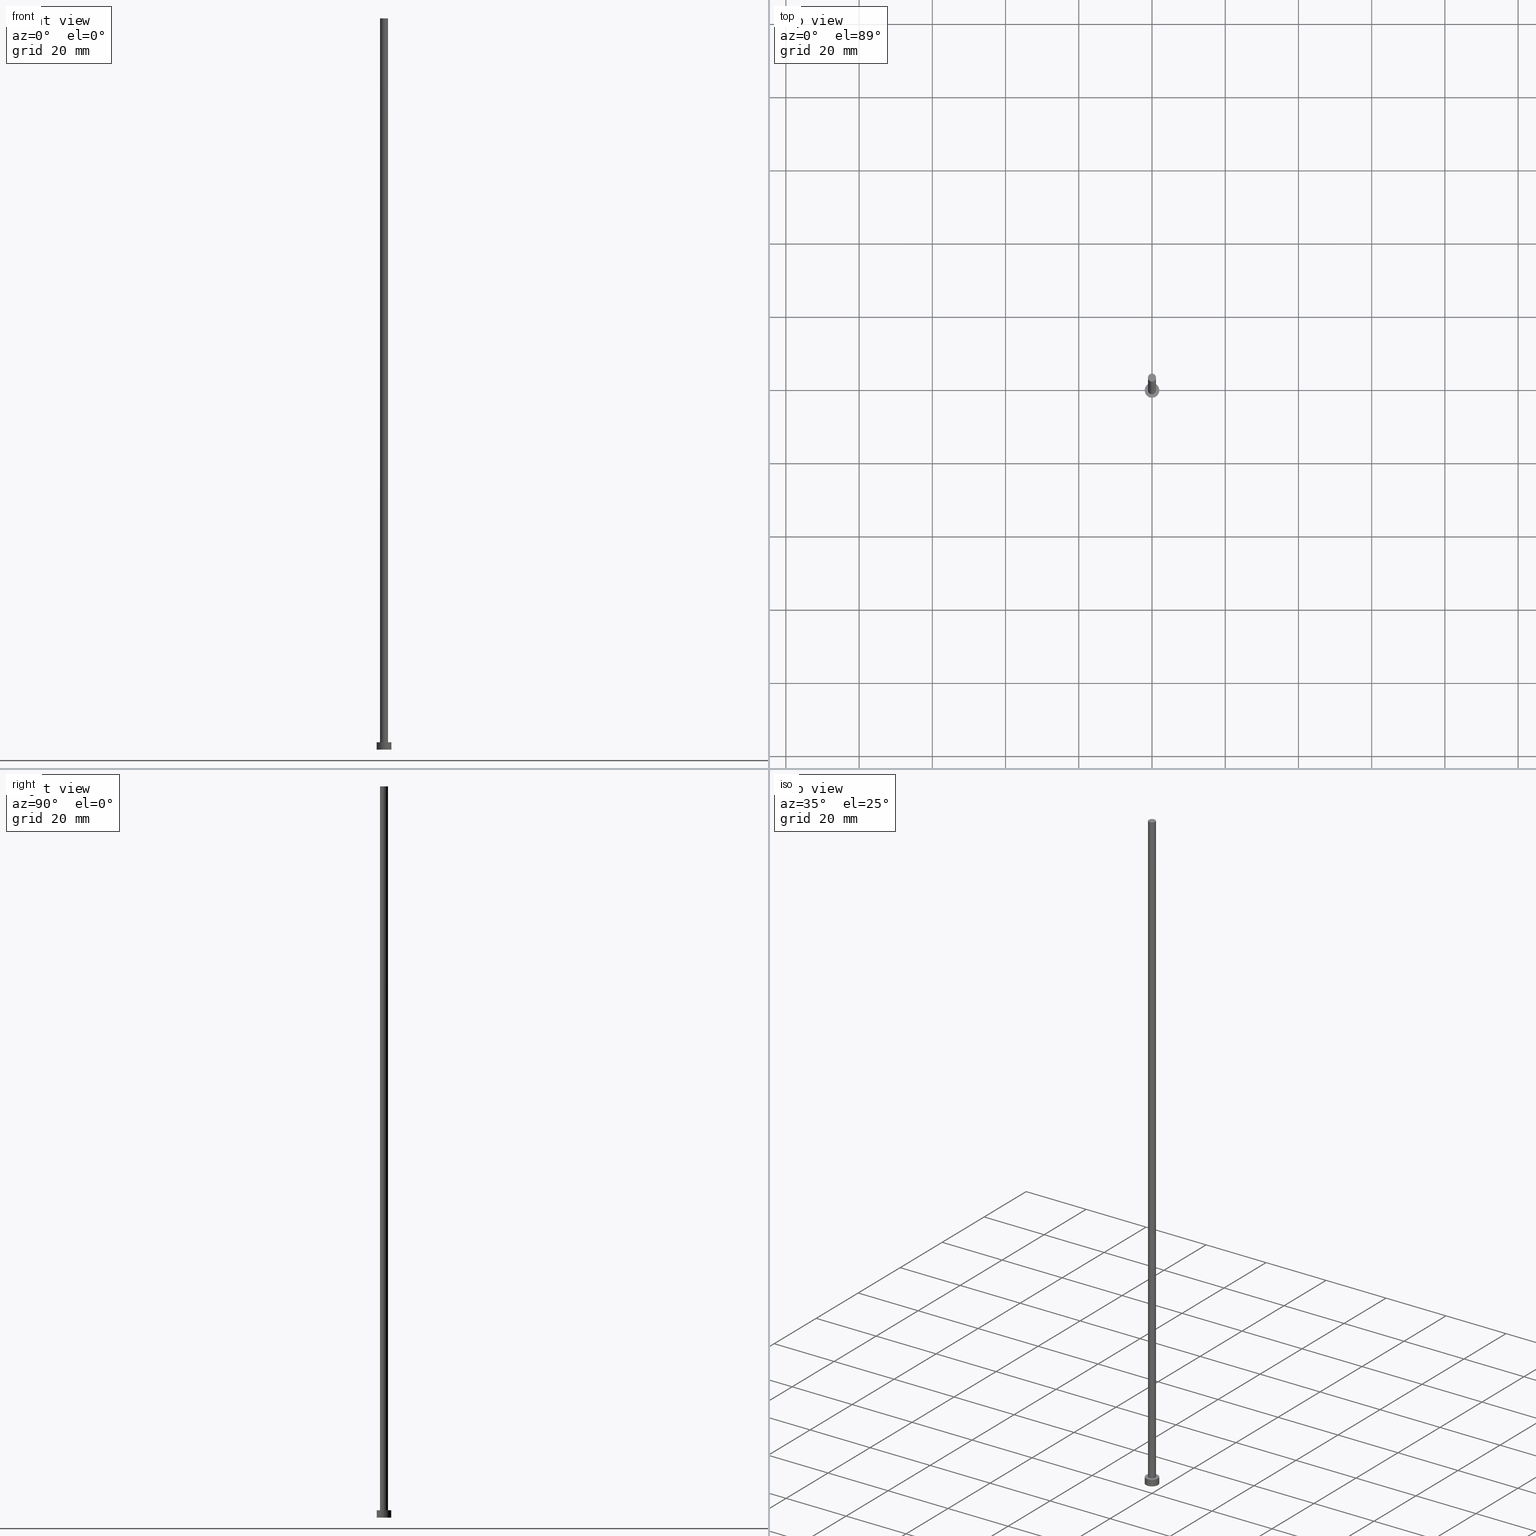
[diagram: canonical four-view strip — front | top / right | iso, engineering-drawing reading convention]
A machine part, canonical four-view strip (front | top / right | iso — engineering-drawing reading convention). The complete STEP part file that produces these views, byte-faithful:
ISO-10303-21;
HEADER;
FILE_DESCRIPTION (( 'STEP AP203' ),
    '1' );
FILE_NAME ('b274.STEP',
    '2023-04-04T13:15:45',
    ( '' ),
    ( '' ),
    'SwSTEP 2.0',
    'SolidWorks 2019',
    '' );
FILE_SCHEMA (( 'CONFIG_CONTROL_DESIGN' ));
ENDSEC;

DATA;
#1 = EDGE_LOOP ( 'NONE', ( #235, #194, #211, #18 ) ) ;
#2 = EDGE_CURVE ( 'NONE', #159, #37, #104, .T. ) ;
#3 = DIRECTION ( 'NONE',  ( 1.000000000000000000, 0.000000000000000000, 0.000000000000000000 ) ) ;
#4 = AXIS2_PLACEMENT_3D ( 'NONE', #46, #115, #187 ) ;
#5 = CC_DESIGN_APPROVAL ( #228, ( #97 ) ) ;
#6 = CARTESIAN_POINT ( 'NONE',  ( 0.000000000000000000, 0.000000000000000000, 0.000000000000000000 ) ) ;
#7 = PLANE ( 'NONE',  #21 ) ;
#8 = DIRECTION ( 'NONE',  ( -0.000000000000000000, -0.000000000000000000, -1.000000000000000000 ) ) ;
#9 = AXIS2_PLACEMENT_3D ( 'NONE', #132, #246, #184 ) ;
#10 = FACE_OUTER_BOUND ( 'NONE', #173, .T. ) ;
#11 = FACE_BOUND ( 'NONE', #181, .T. ) ;
#12 = EDGE_CURVE ( 'NONE', #42, #255, #193, .T. ) ;
#13 = APPROVAL_STATUS ( 'not_yet_approved' ) ;
#14 = PERSON ( 'NEUR�EN�', 'NEUR�EN�', 'NEUR�EN�', ('NEUR�EN�'), ('NEUR�EN�'), ('NEUR�EN�') ) ;
#15 = EDGE_CURVE ( 'NONE', #160, #250, #236, .T. ) ;
#16 = COORDINATED_UNIVERSAL_TIME_OFFSET ( 1, 0, .AHEAD. ) ;
#17 = CARTESIAN_POINT ( 'NONE',  ( 1.100000000000000089, 1.347111479062088503E-16, 2.000000000000000000 ) ) ;
#18 = ORIENTED_EDGE ( 'NONE', *, *, #35, .T. ) ;
#19 = CIRCLE ( 'NONE', #34, 1.100000000000000089 ) ;
#20 = APPROVAL_ROLE ( '' ) ;
#21 = AXIS2_PLACEMENT_3D ( 'NONE', #71, #149, #147 ) ;
#22 = AXIS2_PLACEMENT_3D ( 'NONE', #227, #43, #3 ) ;
#23 = ORIENTED_EDGE ( 'NONE', *, *, #15, .F. ) ;
#24 = ADVANCED_FACE ( 'NONE', ( #122 ), #195, .F. ) ;
#25 = DIRECTION ( 'NONE',  ( 0.000000000000000000, 0.000000000000000000, 1.000000000000000000 ) ) ;
#26 = EDGE_LOOP ( 'NONE', ( #23, #45, #234, #230 ) ) ;
#27 = FACE_OUTER_BOUND ( 'NONE', #128, .T. ) ;
#28 = CARTESIAN_POINT ( 'NONE',  ( 0.000000000000000000, 0.000000000000000000, 2.000000000000000000 ) ) ;
#29 = CYLINDRICAL_SURFACE ( 'NONE', #4, 1.100000000000000089 ) ;
#30 = DIRECTION ( 'NONE',  ( 0.000000000000000000, 0.000000000000000000, 1.000000000000000000 ) ) ;
#31 = DIRECTION ( 'NONE',  ( -0.000000000000000000, -0.000000000000000000, -1.000000000000000000 ) ) ;
#32 = CC_DESIGN_PERSON_AND_ORGANIZATION_ASSIGNMENT ( #168, #33, ( #65 ) ) ;
#33 = PERSON_AND_ORGANIZATION_ROLE ( 'design_owner' ) ;
#34 = AXIS2_PLACEMENT_3D ( 'NONE', #239, #66, #207 ) ;
#35 = EDGE_CURVE ( 'NONE', #255, #42, #19, .T. ) ;
#36 = CALENDAR_DATE ( 2023, 4, 4 ) ;
#37 = VERTEX_POINT ( 'NONE', #190 ) ;
#38 = APPROVAL_STATUS ( 'not_yet_approved' ) ;
#39 = CARTESIAN_POINT ( 'NONE',  ( 2.000000000000000000, 2.449293598294706414E-16, 2.000000000000000000 ) ) ;
#40 = DIRECTION ( 'NONE',  ( 1.000000000000000000, 0.000000000000000000, 0.000000000000000000 ) ) ;
#41 = AXIS2_PLACEMENT_3D ( 'NONE', #6, #162, #112 ) ;
#42 = VERTEX_POINT ( 'NONE', #17 ) ;
#43 = DIRECTION ( 'NONE',  ( 0.000000000000000000, 0.000000000000000000, 1.000000000000000000 ) ) ;
#44 = CC_DESIGN_APPROVAL ( #170, ( #237 ) ) ;
#45 = ORIENTED_EDGE ( 'NONE', *, *, #83, .T. ) ;
#46 = CARTESIAN_POINT ( 'NONE',  ( 0.000000000000000000, 0.000000000000000000, 199.6999999999999886 ) ) ;
#47 = LINE ( 'NONE', #130, #150 ) ;
#48 = CIRCLE ( 'NONE', #105, 2.000000000000000000 ) ;
#49 = PLANE ( 'NONE',  #212 ) ;
#50 = CYLINDRICAL_SURFACE ( 'NONE', #9, 1.100000000000000089 ) ;
#51 = VECTOR ( 'NONE', #182, 1000.000000000000000 ) ;
#52 = APPLICATION_PROTOCOL_DEFINITION ( 'international standard', 'config_control_design', 1994, #59 ) ;
#53 =( GEOMETRIC_REPRESENTATION_CONTEXT ( 3 ) GLOBAL_UNCERTAINTY_ASSIGNED_CONTEXT ( ( #56 ) ) GLOBAL_UNIT_ASSIGNED_CONTEXT ( ( #202, #70, #226 ) ) REPRESENTATION_CONTEXT ( 'NONE', 'WORKASPACE' ) );
#54 = CARTESIAN_POINT ( 'NONE',  ( 0.000000000000000000, 0.000000000000000000, 199.6999999999999886 ) ) ;
#55 = APPROVAL_STATUS ( 'not_yet_approved' ) ;
#56 = UNCERTAINTY_MEASURE_WITH_UNIT (LENGTH_MEASURE( 1.000000000000000082E-05 ), #202, 'distance_accuracy_value', 'NONE');
#57 = VERTEX_POINT ( 'NONE', #100 ) ;
#58 = CC_DESIGN_DATE_AND_TIME_ASSIGNMENT ( #208, #192, ( #237 ) ) ;
#59 = APPLICATION_CONTEXT ( 'configuration controlled 3d designs of mechanical parts and assemblies' ) ;
#60 = LOCAL_TIME ( 15, 15, 45.00000000000000000, #204 ) ;
#61 = EDGE_CURVE ( 'NONE', #250, #160, #231, .T. ) ;
#62 = DIRECTION ( 'NONE',  ( -0.000000000000000000, -0.000000000000000000, -1.000000000000000000 ) ) ;
#63 = VERTEX_POINT ( 'NONE', #39 ) ;
#64 = CIRCLE ( 'NONE', #69, 2.000000000000000000 ) ;
#65 = PRODUCT ( 'b274', 'b274', '', ( #96 ) ) ;
#66 = DIRECTION ( 'NONE',  ( 0.000000000000000000, 0.000000000000000000, 1.000000000000000000 ) ) ;
#67 = CYLINDRICAL_SURFACE ( 'NONE', #254, 2.000000000000000000 ) ;
#68 = DIRECTION ( 'NONE',  ( 0.000000000000000000, 0.000000000000000000, 1.000000000000000000 ) ) ;
#69 = AXIS2_PLACEMENT_3D ( 'NONE', #241, #68, #148 ) ;
#70 =( NAMED_UNIT ( * ) PLANE_ANGLE_UNIT ( ) SI_UNIT ( $, .RADIAN. ) );
#71 = CARTESIAN_POINT ( 'NONE',  ( 0.000000000000000000, 0.000000000000000000, 2.000000000000000000 ) ) ;
#72 = APPROVAL_DATE_TIME ( #176, #177 ) ;
#73 = VECTOR ( 'NONE', #31, 1000.000000000000000 ) ;
#74 = AXIS2_PLACEMENT_3D ( 'NONE', #167, #217, #113 ) ;
#75 = ADVANCED_FACE ( 'NONE', ( #200 ), #29, .T. ) ;
#76 = PERSON_AND_ORGANIZATION ( #14, #131 ) ;
#77 = PERSON_AND_ORGANIZATION ( #14, #131 ) ;
#78 = CALENDAR_DATE ( 2023, 4, 4 ) ;
#79 = DIRECTION ( 'NONE',  ( 0.000000000000000000, 0.000000000000000000, 1.000000000000000000 ) ) ;
#80 = CC_DESIGN_SECURITY_CLASSIFICATION ( #233, ( #97 ) ) ;
#81 = PERSON_AND_ORGANIZATION_ROLE ( 'classification_officer' ) ;
#82 = ORIENTED_EDGE ( 'NONE', *, *, #12, .F. ) ;
#83 = EDGE_CURVE ( 'NONE', #160, #42, #165, .T. ) ;
#84 = DESIGN_CONTEXT ( 'detailed design', #59, 'design' ) ;
#85 = EDGE_LOOP ( 'NONE', ( #253, #179 ) ) ;
#86 = EDGE_LOOP ( 'NONE', ( #214, #125 ) ) ;
#87 = CARTESIAN_POINT ( 'NONE',  ( 0.000000000000000000, 0.000000000000000000, 0.000000000000000000 ) ) ;
#88 = MANIFOLD_SOLID_BREP ( 'P�idat vysunut�m3', #126 ) ;
#89 = CC_DESIGN_APPROVAL ( #177, ( #233 ) ) ;
#90 = CC_DESIGN_PERSON_AND_ORGANIZATION_ASSIGNMENT ( #102, #139, ( #237 ) ) ;
#91 = LINE ( 'NONE', #218, #73 ) ;
#92 = FACE_OUTER_BOUND ( 'NONE', #26, .T. ) ;
#93 = CARTESIAN_POINT ( 'NONE',  ( 1.100000000000000089, 1.347111479062088503E-16, 199.6999999999999886 ) ) ;
#94 = DIRECTION ( 'NONE',  ( -1.000000000000000000, 0.000000000000000000, 0.000000000000000000 ) ) ;
#95 = FACE_OUTER_BOUND ( 'NONE', #86, .T. ) ;
#96 = MECHANICAL_CONTEXT ( 'NONE', #252, 'mechanical' ) ;
#97 = PRODUCT_DEFINITION_FORMATION_WITH_SPECIFIED_SOURCE ( 'LIBOVOLN�', '', #65, .NOT_KNOWN. ) ;
#98 = APPROVAL_ROLE ( '' ) ;
#99 = CALENDAR_DATE ( 2023, 4, 4 ) ;
#100 = CARTESIAN_POINT ( 'NONE',  ( 2.000000000000000000, 2.449293598294706414E-16, 0.000000000000000000 ) ) ;
#101 = PRODUCT_DEFINITION_SHAPE ( 'NONE', 'NONE',  #237 ) ;
#102 = PERSON_AND_ORGANIZATION ( #14, #131 ) ;
#103 = EDGE_CURVE ( 'NONE', #63, #57, #47, .T. ) ;
#104 = LINE ( 'NONE', #127, #111 ) ;
#105 = AXIS2_PLACEMENT_3D ( 'NONE', #201, #30, #146 ) ;
#106 = PERSON_AND_ORGANIZATION ( #14, #131 ) ;
#107 = ORIENTED_EDGE ( 'NONE', *, *, #2, .T. ) ;
#108 = DIRECTION ( 'NONE',  ( 1.000000000000000000, 0.000000000000000000, -0.000000000000000000 ) ) ;
#109 = ORIENTED_EDGE ( 'NONE', *, *, #2, .F. ) ;
#110 = EDGE_CURVE ( 'NONE', #37, #57, #123, .T. ) ;
#111 = VECTOR ( 'NONE', #62, 1000.000000000000000 ) ;
#112 = DIRECTION ( 'NONE',  ( 1.000000000000000000, 0.000000000000000000, 0.000000000000000000 ) ) ;
#113 = DIRECTION ( 'NONE',  ( 1.000000000000000000, 0.000000000000000000, 0.000000000000000000 ) ) ;
#114 = CARTESIAN_POINT ( 'NONE',  ( 0.000000000000000000, 0.000000000000000000, 199.6999999999999886 ) ) ;
#115 = DIRECTION ( 'NONE',  ( -0.000000000000000000, -0.000000000000000000, -1.000000000000000000 ) ) ;
#116 = PERSON_AND_ORGANIZATION_ROLE ( 'design_supplier' ) ;
#117 = APPLICATION_PROTOCOL_DEFINITION ( 'international standard', 'config_control_design', 1994, #252 ) ;
#118 = AXIS2_PLACEMENT_3D ( 'NONE', #144, #79, #155 ) ;
#119 = SECURITY_CLASSIFICATION_LEVEL ( 'unclassified' ) ;
#120 = ORIENTED_EDGE ( 'NONE', *, *, #220, .F. ) ;
#121 = PERSON_AND_ORGANIZATION ( #14, #131 ) ;
#122 = FACE_OUTER_BOUND ( 'NONE', #85, .T. ) ;
#123 = CIRCLE ( 'NONE', #41, 2.000000000000000000 ) ;
#124 = EDGE_CURVE ( 'NONE', #250, #255, #91, .T. ) ;
#125 = ORIENTED_EDGE ( 'NONE', *, *, #213, .T. ) ;
#126 = CLOSED_SHELL ( 'NONE', ( #166, #210, #178, #183, #24, #75, #153 ) ) ;
#127 = CARTESIAN_POINT ( 'NONE',  ( -2.000000000000000000, 0.000000000000000000, 2.000000000000000000 ) ) ;
#128 = EDGE_LOOP ( 'NONE', ( #180, #145, #142, #109 ) ) ;
#129 = CARTESIAN_POINT ( 'NONE',  ( 1.100000000000000089, 1.347111479062088503E-16, 199.6999999999999886 ) ) ;
#130 = CARTESIAN_POINT ( 'NONE',  ( 2.000000000000000000, 2.449293598294706414E-16, 2.000000000000000000 ) ) ;
#131 = ORGANIZATION ( 'NEUR�EN�', 'NEUR�EN�', '' ) ;
#132 = CARTESIAN_POINT ( 'NONE',  ( 0.000000000000000000, 0.000000000000000000, 199.6999999999999886 ) ) ;
#133 = AXIS2_PLACEMENT_3D ( 'NONE', #87, #25, #108 ) ;
#134 = DIRECTION ( 'NONE',  ( 1.000000000000000000, 0.000000000000000000, -0.000000000000000000 ) ) ;
#135 = PERSON_AND_ORGANIZATION ( #14, #131 ) ;
#136 = PRODUCT_RELATED_PRODUCT_CATEGORY ( 'detail', '', ( #65 ) ) ;
#137 = DATE_AND_TIME ( #174, #164 ) ;
#138 = CC_DESIGN_PERSON_AND_ORGANIZATION_ASSIGNMENT ( #77, #152, ( #97 ) ) ;
#139 = PERSON_AND_ORGANIZATION_ROLE ( 'creator' ) ;
#140 = DIRECTION ( 'NONE',  ( 0.000000000000000000, 0.000000000000000000, 1.000000000000000000 ) ) ;
#141 = CARTESIAN_POINT ( 'NONE',  ( 0.000000000000000000, 0.000000000000000000, 0.000000000000000000 ) ) ;
#142 = ORIENTED_EDGE ( 'NONE', *, *, #242, .T. ) ;
#143 = AXIS2_PLACEMENT_3D ( 'NONE', #28, #222, #94 ) ;
#144 = CARTESIAN_POINT ( 'NONE',  ( 0.000000000000000000, 0.000000000000000000, 2.000000000000000000 ) ) ;
#145 = ORIENTED_EDGE ( 'NONE', *, *, #103, .T. ) ;
#146 = DIRECTION ( 'NONE',  ( 1.000000000000000000, 0.000000000000000000, 0.000000000000000000 ) ) ;
#147 = DIRECTION ( 'NONE',  ( 1.000000000000000000, 0.000000000000000000, -0.000000000000000000 ) ) ;
#148 = DIRECTION ( 'NONE',  ( 1.000000000000000000, 0.000000000000000000, 0.000000000000000000 ) ) ;
#149 = DIRECTION ( 'NONE',  ( 0.000000000000000000, 0.000000000000000000, 1.000000000000000000 ) ) ;
#150 = VECTOR ( 'NONE', #240, 1000.000000000000000 ) ;
#151 = SHAPE_DEFINITION_REPRESENTATION ( #101, #197 ) ;
#152 = PERSON_AND_ORGANIZATION_ROLE ( 'creator' ) ;
#153 = ADVANCED_FACE ( 'NONE', ( #10 ), #49, .T. ) ;
#154 = DATE_AND_TIME ( #205, #60 ) ;
#155 = DIRECTION ( 'NONE',  ( 1.000000000000000000, 0.000000000000000000, 0.000000000000000000 ) ) ;
#156 = DATE_AND_TIME ( #99, #238 ) ;
#157 = EDGE_LOOP ( 'NONE', ( #175, #120, #107, #158 ) ) ;
#158 = ORIENTED_EDGE ( 'NONE', *, *, #110, .T. ) ;
#159 = VERTEX_POINT ( 'NONE', #245 ) ;
#160 = VERTEX_POINT ( 'NONE', #93 ) ;
#161 = DIRECTION ( 'NONE',  ( 0.000000000000000000, 0.000000000000000000, 1.000000000000000000 ) ) ;
#162 = DIRECTION ( 'NONE',  ( 0.000000000000000000, 0.000000000000000000, 1.000000000000000000 ) ) ;
#163 = CYLINDRICAL_SURFACE ( 'NONE', #143, 2.000000000000000000 ) ;
#164 = LOCAL_TIME ( 15, 15, 45.00000000000000000, #171 ) ;
#165 = LINE ( 'NONE', #129, #51 ) ;
#166 = ADVANCED_FACE ( 'NONE', ( #92 ), #50, .T. ) ;
#167 = CARTESIAN_POINT ( 'NONE',  ( 0.000000000000000000, 0.000000000000000000, 2.000000000000000000 ) ) ;
#168 = PERSON_AND_ORGANIZATION ( #14, #131 ) ;
#169 = APPROVAL_PERSON_ORGANIZATION ( #135, #170, #251 ) ;
#170 = APPROVAL ( #13, 'NEUR�EN�' ) ;
#171 = COORDINATED_UNIVERSAL_TIME_OFFSET ( 1, 0, .AHEAD. ) ;
#172 = COORDINATED_UNIVERSAL_TIME_OFFSET ( 1, 0, .AHEAD. ) ;
#173 = EDGE_LOOP ( 'NONE', ( #196, #215 ) ) ;
#174 = CALENDAR_DATE ( 2023, 4, 4 ) ;
#175 = ORIENTED_EDGE ( 'NONE', *, *, #103, .F. ) ;
#176 = DATE_AND_TIME ( #78, #199 ) ;
#177 = APPROVAL ( #55, 'NEUR�EN�' ) ;
#178 = ADVANCED_FACE ( 'NONE', ( #198 ), #67, .T. ) ;
#179 = ORIENTED_EDGE ( 'NONE', *, *, #242, .F. ) ;
#180 = ORIENTED_EDGE ( 'NONE', *, *, #213, .F. ) ;
#181 = EDGE_LOOP ( 'NONE', ( #191, #82 ) ) ;
#182 = DIRECTION ( 'NONE',  ( -0.000000000000000000, -0.000000000000000000, -1.000000000000000000 ) ) ;
#183 = ADVANCED_FACE ( 'NONE', ( #11, #95 ), #7, .T. ) ;
#184 = DIRECTION ( 'NONE',  ( -1.000000000000000000, 0.000000000000000000, 0.000000000000000000 ) ) ;
#185 = CARTESIAN_POINT ( 'NONE',  ( 0.000000000000000000, 0.000000000000000000, 2.000000000000000000 ) ) ;
#186 = APPROVAL_PERSON_ORGANIZATION ( #76, #177, #20 ) ;
#187 = DIRECTION ( 'NONE',  ( -1.000000000000000000, 0.000000000000000000, 0.000000000000000000 ) ) ;
#188 = PERSON_AND_ORGANIZATION ( #14, #131 ) ;
#189 = AXIS2_PLACEMENT_3D ( 'NONE', #141, #225, #40 ) ;
#190 = CARTESIAN_POINT ( 'NONE',  ( -2.000000000000000000, 0.000000000000000000, 0.000000000000000000 ) ) ;
#191 = ORIENTED_EDGE ( 'NONE', *, *, #35, .F. ) ;
#192 = DATE_TIME_ROLE ( 'creation_date' ) ;
#193 = CIRCLE ( 'NONE', #118, 1.100000000000000089 ) ;
#194 = ORIENTED_EDGE ( 'NONE', *, *, #61, .F. ) ;
#195 = PLANE ( 'NONE',  #133 ) ;
#196 = ORIENTED_EDGE ( 'NONE', *, *, #61, .T. ) ;
#197 = ADVANCED_BREP_SHAPE_REPRESENTATION ( 'b274', ( #88, #189 ), #53 ) ;
#198 = FACE_OUTER_BOUND ( 'NONE', #157, .T. ) ;
#199 = LOCAL_TIME ( 15, 15, 45.00000000000000000, #172 ) ;
#200 = FACE_OUTER_BOUND ( 'NONE', #1, .T. ) ;
#201 = CARTESIAN_POINT ( 'NONE',  ( 0.000000000000000000, 0.000000000000000000, 0.000000000000000000 ) ) ;
#202 =( LENGTH_UNIT ( ) NAMED_UNIT ( * ) SI_UNIT ( .MILLI., .METRE. ) );
#203 = LOCAL_TIME ( 15, 15, 45.00000000000000000, #249 ) ;
#204 = COORDINATED_UNIVERSAL_TIME_OFFSET ( 1, 0, .AHEAD. ) ;
#205 = CALENDAR_DATE ( 2023, 4, 4 ) ;
#206 = APPROVAL_DATE_TIME ( #154, #170 ) ;
#207 = DIRECTION ( 'NONE',  ( 1.000000000000000000, 0.000000000000000000, 0.000000000000000000 ) ) ;
#208 = DATE_AND_TIME ( #36, #203 ) ;
#209 = DIRECTION ( 'NONE',  ( 1.000000000000000000, 0.000000000000000000, 0.000000000000000000 ) ) ;
#210 = ADVANCED_FACE ( 'NONE', ( #27 ), #163, .T. ) ;
#211 = ORIENTED_EDGE ( 'NONE', *, *, #124, .T. ) ;
#212 = AXIS2_PLACEMENT_3D ( 'NONE', #114, #161, #134 ) ;
#213 = EDGE_CURVE ( 'NONE', #63, #159, #247, .T. ) ;
#214 = ORIENTED_EDGE ( 'NONE', *, *, #220, .T. ) ;
#215 = ORIENTED_EDGE ( 'NONE', *, *, #15, .T. ) ;
#216 = CC_DESIGN_PERSON_AND_ORGANIZATION_ASSIGNMENT ( #121, #81, ( #233 ) ) ;
#217 = DIRECTION ( 'NONE',  ( 0.000000000000000000, 0.000000000000000000, 1.000000000000000000 ) ) ;
#218 = CARTESIAN_POINT ( 'NONE',  ( -1.100000000000000089, 0.000000000000000000, 199.6999999999999886 ) ) ;
#219 = CARTESIAN_POINT ( 'NONE',  ( -1.100000000000000089, 0.000000000000000000, 199.6999999999999886 ) ) ;
#220 = EDGE_CURVE ( 'NONE', #159, #63, #64, .T. ) ;
#221 = DIRECTION ( 'NONE',  ( -1.000000000000000000, 0.000000000000000000, 0.000000000000000000 ) ) ;
#222 = DIRECTION ( 'NONE',  ( -0.000000000000000000, -0.000000000000000000, -1.000000000000000000 ) ) ;
#223 = AXIS2_PLACEMENT_3D ( 'NONE', #54, #140, #209 ) ;
#224 = CC_DESIGN_PERSON_AND_ORGANIZATION_ASSIGNMENT ( #106, #116, ( #97 ) ) ;
#225 = DIRECTION ( 'NONE',  ( 0.000000000000000000, 0.000000000000000000, 1.000000000000000000 ) ) ;
#226 =( NAMED_UNIT ( * ) SI_UNIT ( $, .STERADIAN. ) SOLID_ANGLE_UNIT ( ) );
#227 = CARTESIAN_POINT ( 'NONE',  ( 0.000000000000000000, 0.000000000000000000, 199.6999999999999886 ) ) ;
#228 = APPROVAL ( #38, 'NEUR�EN�' ) ;
#229 = DATE_TIME_ROLE ( 'classification_date' ) ;
#230 = ORIENTED_EDGE ( 'NONE', *, *, #124, .F. ) ;
#231 = CIRCLE ( 'NONE', #223, 1.100000000000000089 ) ;
#232 = CC_DESIGN_DATE_AND_TIME_ASSIGNMENT ( #156, #229, ( #233 ) ) ;
#233 = SECURITY_CLASSIFICATION ( '', '', #119 ) ;
#234 = ORIENTED_EDGE ( 'NONE', *, *, #12, .T. ) ;
#235 = ORIENTED_EDGE ( 'NONE', *, *, #83, .F. ) ;
#236 = CIRCLE ( 'NONE', #22, 1.100000000000000089 ) ;
#237 = PRODUCT_DEFINITION ( 'NEZN�M�', '', #97, #84 ) ;
#238 = LOCAL_TIME ( 15, 15, 45.00000000000000000, #16 ) ;
#239 = CARTESIAN_POINT ( 'NONE',  ( 0.000000000000000000, 0.000000000000000000, 2.000000000000000000 ) ) ;
#240 = DIRECTION ( 'NONE',  ( -0.000000000000000000, -0.000000000000000000, -1.000000000000000000 ) ) ;
#241 = CARTESIAN_POINT ( 'NONE',  ( 0.000000000000000000, 0.000000000000000000, 2.000000000000000000 ) ) ;
#242 = EDGE_CURVE ( 'NONE', #57, #37, #48, .T. ) ;
#243 = APPROVAL_PERSON_ORGANIZATION ( #188, #228, #98 ) ;
#244 = CARTESIAN_POINT ( 'NONE',  ( -1.100000000000000089, 0.000000000000000000, 2.000000000000000000 ) ) ;
#245 = CARTESIAN_POINT ( 'NONE',  ( -2.000000000000000000, 0.000000000000000000, 2.000000000000000000 ) ) ;
#246 = DIRECTION ( 'NONE',  ( -0.000000000000000000, -0.000000000000000000, -1.000000000000000000 ) ) ;
#247 = CIRCLE ( 'NONE', #74, 2.000000000000000000 ) ;
#248 = APPROVAL_DATE_TIME ( #137, #228 ) ;
#249 = COORDINATED_UNIVERSAL_TIME_OFFSET ( 1, 0, .AHEAD. ) ;
#250 = VERTEX_POINT ( 'NONE', #219 ) ;
#251 = APPROVAL_ROLE ( '' ) ;
#252 = APPLICATION_CONTEXT ( 'configuration controlled 3d designs of mechanical parts and assemblies' ) ;
#253 = ORIENTED_EDGE ( 'NONE', *, *, #110, .F. ) ;
#254 = AXIS2_PLACEMENT_3D ( 'NONE', #185, #8, #221 ) ;
#255 = VERTEX_POINT ( 'NONE', #244 ) ;
ENDSEC;
END-ISO-10303-21;
